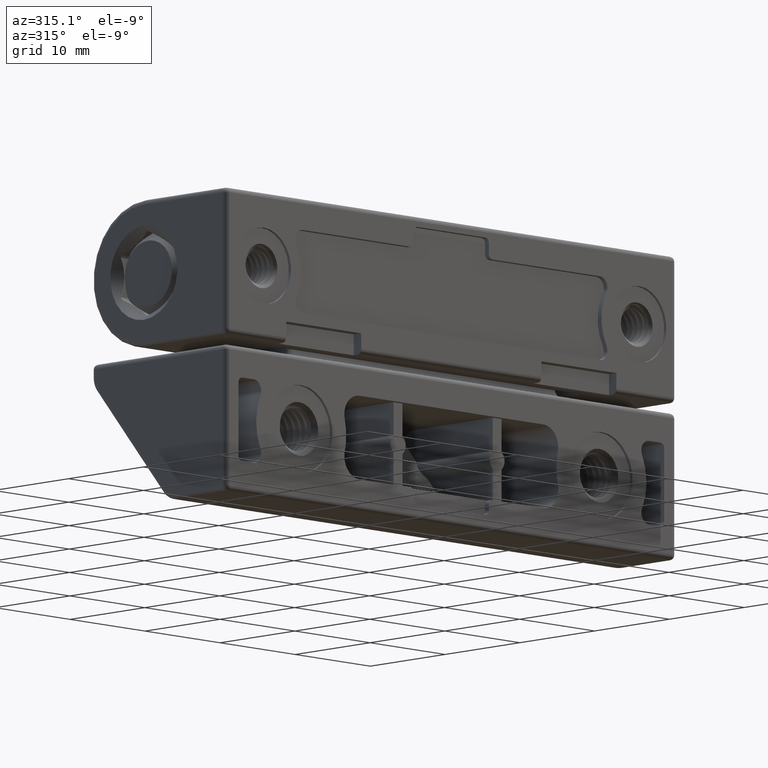
[diagram: clean part render]
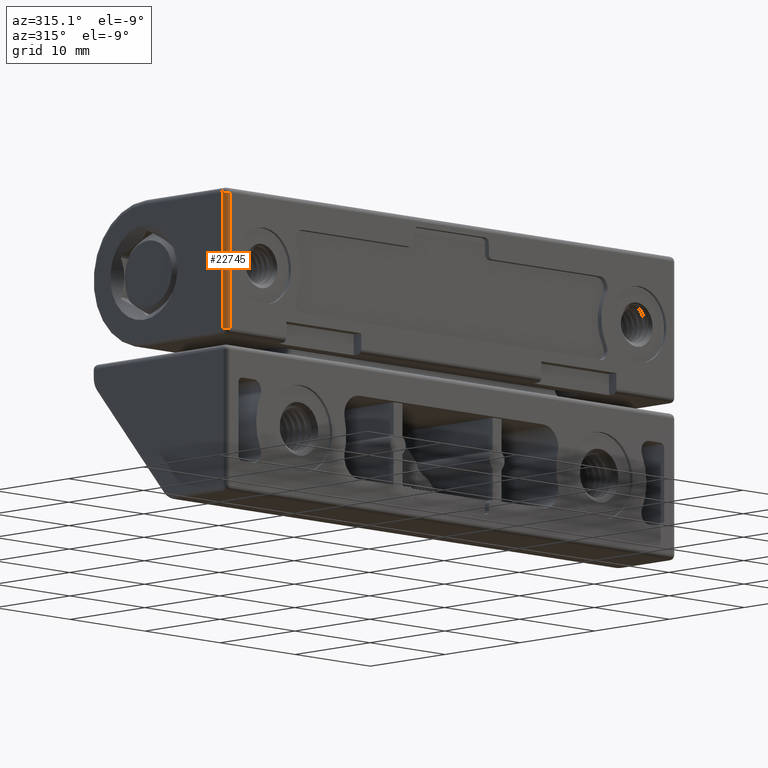
[diagram: same view with one face highlighted and labeled with its STEP entity id]
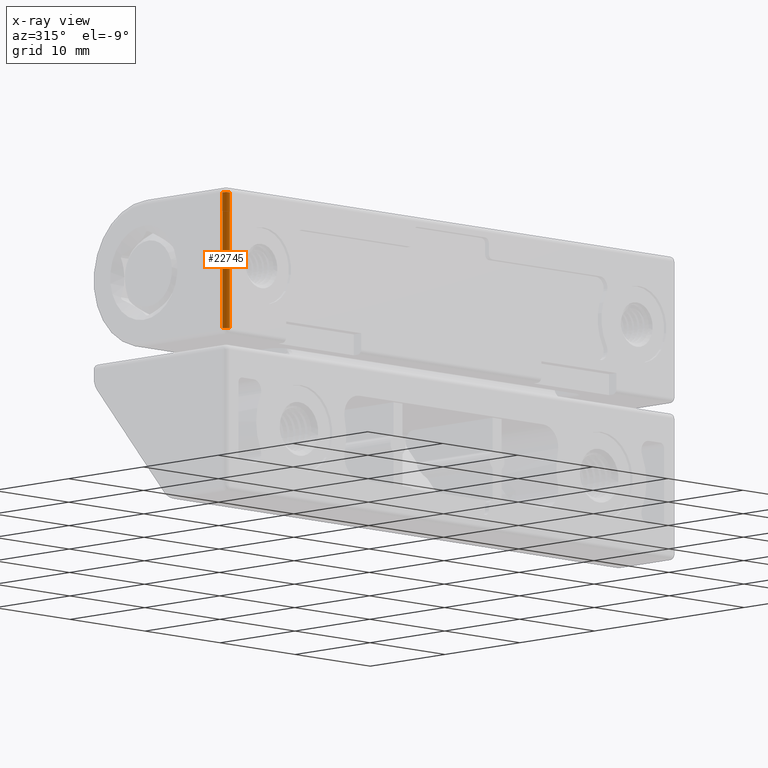
[diagram: x-ray of the same camera — body ghosted, the highlighted face saturated]
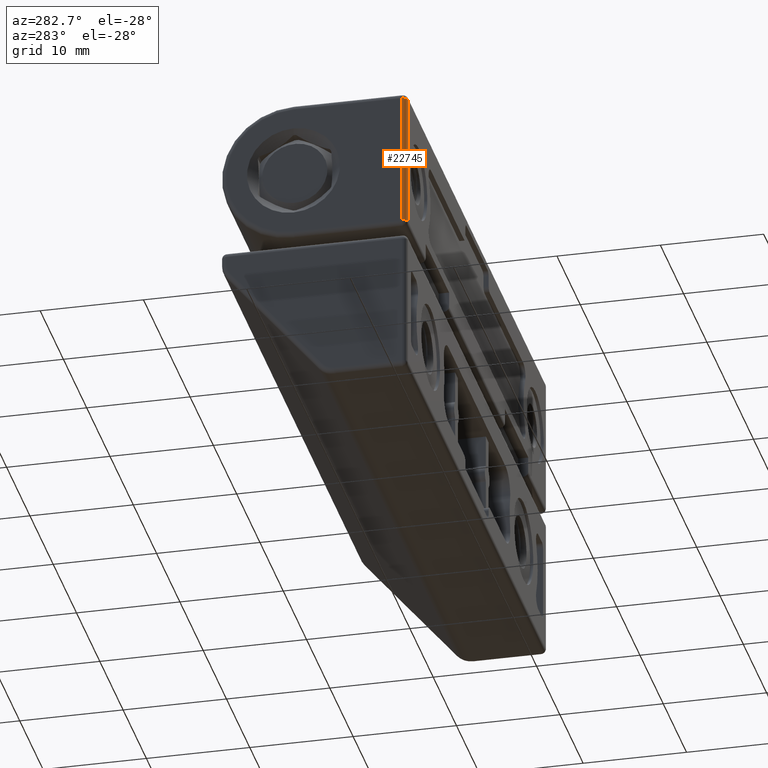
[diagram: same view with one face highlighted and labeled with its STEP entity id]
A machine part, auxiliary view. The second image highlights one B-rep face of the part: STEP entity #22745.
The next image is the same camera in x-ray: the body ghosted, the highlighted face saturated — about 0% of this face is hidden behind the body in this view.
A second angle (auxiliary view) of the same face is appended — the face is thin or edge-on in the first view.
In plain terms, the highlighted cylindrical surface (edge-blend (fillet) strip) has radius 0.5 mm, axis along (0, 0, 1).
Its self-contained STEP definition (entity closure, byte-faithful):
#912 = VERTEX_POINT ( 'NONE', #17125 ) ;
#1256 = CARTESIAN_POINT ( 'NONE',  ( -29.50000000000000000, 0.5000000000000000000, -6.500000000000000000 ) ) ;
#2651 = CARTESIAN_POINT ( 'NONE',  ( -30.00000000000000000, 0.5000000000000000000, 6.500000000000000000 ) ) ;
#2655 = EDGE_LOOP ( 'NONE', ( #25759, #20126, #22233, #20760 ) ) ;
#3446 = DIRECTION ( 'NONE',  ( 1.000000000000000000, 0.0000000000000000000, 0.0000000000000000000 ) ) ;
#5491 = VECTOR ( 'NONE', #7766, 1000.000000000000000 ) ;
#6134 = DIRECTION ( 'NONE',  ( 1.000000000000000000, 0.0000000000000000000, 0.0000000000000000000 ) ) ;
#7766 = DIRECTION ( 'NONE',  ( -0.0000000000000000000, -0.0000000000000000000, 1.000000000000000000 ) ) ;
#8331 = CIRCLE ( 'NONE', #20250, 0.5000000000000004400 ) ;
#8629 = CYLINDRICAL_SURFACE ( 'NONE', #12228, 0.5000000000000004400 ) ;
#8828 = VERTEX_POINT ( 'NONE', #18890 ) ;
#9302 = VERTEX_POINT ( 'NONE', #2651 ) ;
#11283 = LINE ( 'NONE', #20843, #5491 ) ;
#11298 = DIRECTION ( 'NONE',  ( 0.0000000000000000000, 0.0000000000000000000, 1.000000000000000000 ) ) ;
#11944 = CARTESIAN_POINT ( 'NONE',  ( -29.50000000000000000, 0.0000000000000000000, 6.500000000000000000 ) ) ;
#12228 = AXIS2_PLACEMENT_3D ( 'NONE', #27929, #17006, #6134 ) ;
#14977 = AXIS2_PLACEMENT_3D ( 'NONE', #24343, #11298, #26521 ) ;
#15250 = EDGE_CURVE ( 'NONE', #8828, #9302, #11283, .T. ) ;
#16513 = DIRECTION ( 'NONE',  ( 0.0000000000000000000, 0.0000000000000000000, 1.000000000000000000 ) ) ;
#17006 = DIRECTION ( 'NONE',  ( 0.0000000000000000000, 0.0000000000000000000, 1.000000000000000000 ) ) ;
#17125 = CARTESIAN_POINT ( 'NONE',  ( -29.50000000000000000, 0.0000000000000000000, 6.500000000000000000 ) ) ;
#18890 = CARTESIAN_POINT ( 'NONE',  ( -30.00000000000000000, 0.5000000000000000000, -6.500000000000110100 ) ) ;
#19940 = VECTOR ( 'NONE', #20818, 1000.000000000000000 ) ;
#20126 = ORIENTED_EDGE ( 'NONE', *, *, #21369, .F. ) ;
#20250 = AXIS2_PLACEMENT_3D ( 'NONE', #1256, #16513, #3446 ) ;
#20760 = ORIENTED_EDGE ( 'NONE', *, *, #15250, .F. ) ;
#20818 = DIRECTION ( 'NONE',  ( -0.0000000000000000000, -0.0000000000000000000, -1.000000000000000000 ) ) ;
#20843 = CARTESIAN_POINT ( 'NONE',  ( -30.00000000000000000, 0.5000000000000000000, 0.0000000000000000000 ) ) ;
#21308 = VERTEX_POINT ( 'NONE', #22813 ) ;
#21369 = EDGE_CURVE ( 'NONE', #912, #21308, #25040, .T. ) ;
#21403 = EDGE_CURVE ( 'NONE', #8828, #21308, #8331, .T. ) ;
#22233 = ORIENTED_EDGE ( 'NONE', *, *, #23976, .F. ) ;
#22745 = ADVANCED_FACE ( 'NONE', ( #26685 ), #8629, .T. ) ;
#22813 = CARTESIAN_POINT ( 'NONE',  ( -29.50000000000000000, 0.0000000000000000000, -6.500000000000000000 ) ) ;
#23946 = CIRCLE ( 'NONE', #14977, 0.5000000000000004400 ) ;
#23976 = EDGE_CURVE ( 'NONE', #9302, #912, #23946, .T. ) ;
#24343 = CARTESIAN_POINT ( 'NONE',  ( -29.50000000000000000, 0.5000000000000000000, 6.500000000000000000 ) ) ;
#25040 = LINE ( 'NONE', #11944, #19940 ) ;
#25759 = ORIENTED_EDGE ( 'NONE', *, *, #21403, .T. ) ;
#26521 = DIRECTION ( 'NONE',  ( 1.000000000000000000, 0.0000000000000000000, 0.0000000000000000000 ) ) ;
#26685 = FACE_OUTER_BOUND ( 'NONE', #2655, .T. ) ;
#27929 = CARTESIAN_POINT ( 'NONE',  ( -29.50000000000000000, 0.5000000000000000000, 6.500000000000000000 ) ) ;